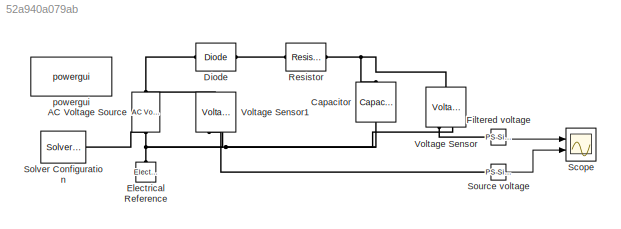
MODEL slx_52a940a079ab
KIND model
CONFIG AbsTol = auto
CONFIG EnableMultiTasking = off
CONFIG FixedStep = auto
CONFIG MaxStep = auto
CONFIG MinStep = auto
CONFIG RelTol = 1e-3
CONFIG SampleTimeConstraint = Unconstrained
CONFIG SolverName = VariableStepAuto
CONFIG StartTime = 0.0
CONFIG StopTime = 10.0
BLOCK [Reference] AC Voltage Source  REF=fl_lib/Electrical/Electrical Sources/AC Voltage Source
  NameLocation = right
  Ports = [0, 0, 0, 0, 0, 1, 1]
  SourceBlock = fl_lib/Electrical/Electrical Sources/AC Voltage Source
  SourceProductBaseCode = PW,SS,VE
  SourceType = AC Voltage Source
BLOCK [Reference] Capacitor  REF=fl_lib/Electrical/Electrical Elements/Capacitor
  NameLocation = left
  Ports = [0, 0, 0, 0, 0, 1, 1]
  SourceBlock = fl_lib/Electrical/Electrical Elements/Capacitor
  SourceProductBaseCode = PW,SS,VE
  SourceType = Capacitor
BLOCK [Reference] Diode  REF=fl_lib/Electrical/Electrical Elements/Diode
  Ports = [0, 0, 0, 0, 0, 1, 1]
  SourceBlock = fl_lib/Electrical/Electrical Elements/Diode
  SourceProductBaseCode = PW,SS,VE
  SourceType = Diode
BLOCK [Reference] Electrical Reference  REF=fl_lib/Electrical/Electrical Elements/Electrical Reference
  NameLocation = right
  Ports = [0, 0, 0, 0, 0, 1]
  SourceBlock = fl_lib/Electrical/Electrical Elements/Electrical Reference
  SourceProductBaseCode = PW,SS,VE
  SourceType = Electrical Reference
BLOCK [Reference] Filtered voltage  REF=nesl_utility/PS-Simulink
Converter
  Ports = [0, 1, 0, 0, 0, 1]
  SourceBlock = nesl_utility/PS-Simulink\nConverter
  SourceProductBaseCode = SS,PW,VE
  SourceType = PS-Simulink\nConverter
BLOCK [Reference] Resistor  REF=fl_lib/Electrical/Electrical Elements/Resistor
  Ports = [0, 0, 0, 0, 0, 1, 1]
  SourceBlock = fl_lib/Electrical/Electrical Elements/Resistor
  SourceProductBaseCode = PW,SS,VE
  SourceType = Resistor
BLOCK [Scope] Scope
  Floating = off
  NumInputPorts = 2
  Ports = [2]
  ScopeSpecificationString = Simulink.scopes.TimeScopeBlockCfg('CurrentConfiguration', extmgr.ConfigurationSet(extmgr.Configuration('Core','General UI',true),extmgr.Configuration('Core','Source UI',true),extmgr.Configuration('Sources','WiredSimulink',true),extmgr.Configuration('Visuals','Time Domain',true,'SerializedDisplays',{struct('MinYLimReal','8.96492','MaxYLimReal','10.44619','YLabelReal','','MinYLimMag','8.96492','MaxY...<+1473ch>
BLOCK [Reference] Solver Configuration  REF=nesl_utility/Solver
Configuration
  Ports = [0, 0, 0, 0, 0, 0, 1]
  SourceBlock = nesl_utility/Solver\nConfiguration
  SourceProductBaseCode = SS,PW,VE
  SourceType = Solver\nConfiguration
BLOCK [Reference] Source voltage  REF=nesl_utility/PS-Simulink
Converter
  Ports = [0, 1, 0, 0, 0, 1]
  SourceBlock = nesl_utility/PS-Simulink\nConverter
  SourceProductBaseCode = SS,PW,VE
  SourceType = PS-Simulink\nConverter
BLOCK [Reference] Voltage Sensor  REF=fl_lib/Electrical/Electrical Sensors/Voltage Sensor
  NameLocation = right
  Ports = [0, 0, 0, 0, 0, 1, 2]
  SourceBlock = fl_lib/Electrical/Electrical Sensors/Voltage Sensor
  SourceProductBaseCode = PW,SS,VE
  SourceType = Voltage Sensor
BLOCK [Reference] Voltage Sensor1  REF=fl_lib/Electrical/Electrical Sensors/Voltage Sensor
  NameLocation = right
  Ports = [0, 0, 0, 0, 0, 1, 2]
  SourceBlock = fl_lib/Electrical/Electrical Sensors/Voltage Sensor
  SourceProductBaseCode = PW,SS,VE
  SourceType = Voltage Sensor
BLOCK [Reference] powergui  REF=spspowerguiLib/powergui
  Ports = []
  Priority = 1
  SourceBlock = spspowerguiLib/powergui
  SourceProductBaseCode = PS
  SourceType = PSB option menu block
LINE Filtered voltage:1 -> Scope:1
LINE Source voltage:1 -> Scope:2
PNET net1: AC Voltage Source:LConn1 -- Diode:LConn1 -- Voltage Sensor1:LConn1
PNET net2: AC Voltage Source:RConn1 -- Capacitor:RConn1 -- Electrical Reference:LConn1 -- Solver Configuration:RConn1 -- Voltage Sensor1:RConn2 -- Voltage Sensor:RConn2
PNET net3: Capacitor:LConn1 -- Resistor:RConn1 -- Voltage Sensor:LConn1
PLINE Diode:RConn1 -- Resistor:LConn1
PLINE Filtered voltage:LConn1 -- Voltage Sensor:RConn1
PLINE Source voltage:LConn1 -- Voltage Sensor1:RConn1
note: PNET lines group multi-terminal physical nets as a canonical sorted terminal list (undirected conserving connections); 2-terminal nets keep the pairwise PLINE form
